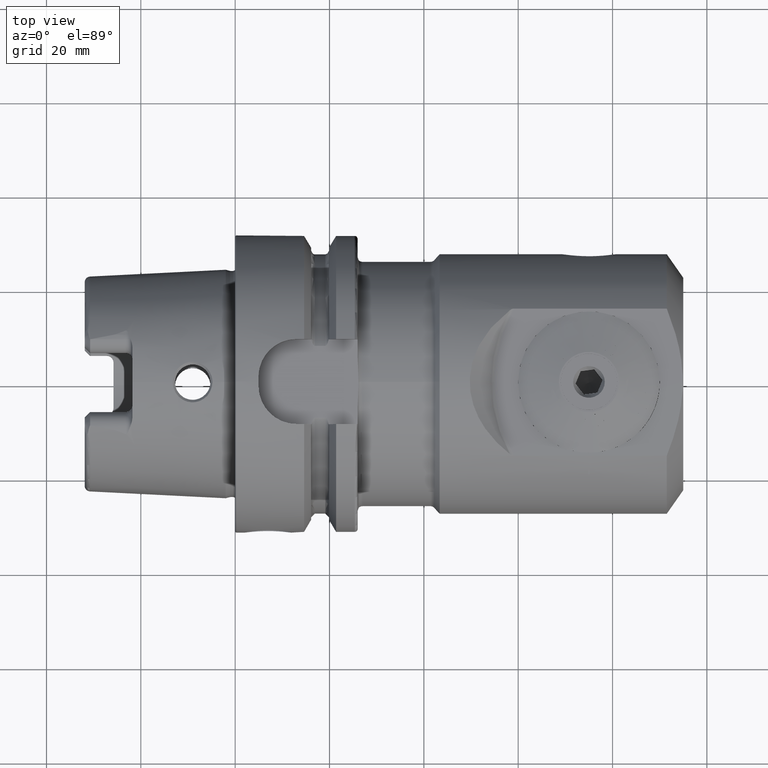
[diagram: clean part render]
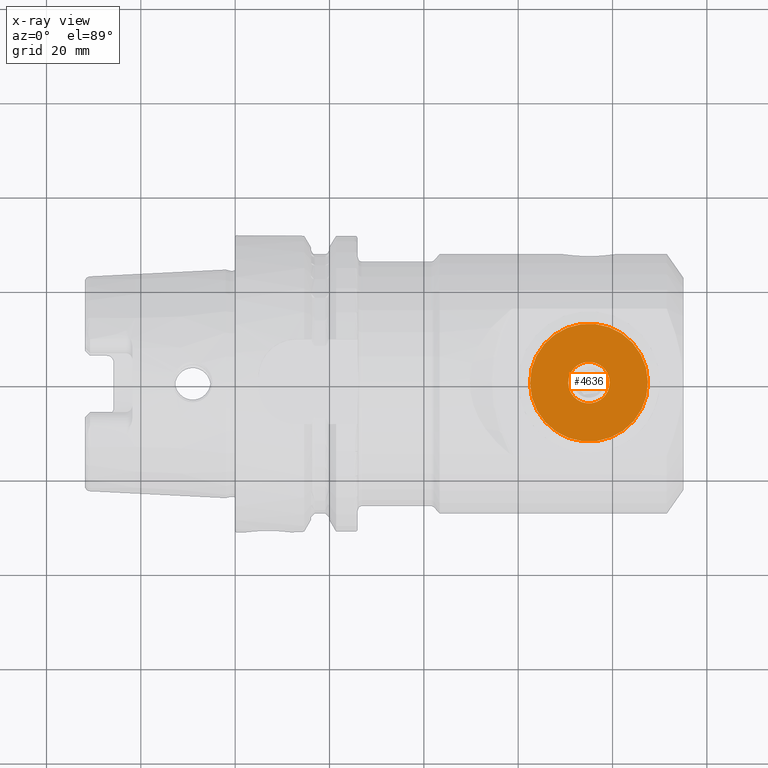
[diagram: x-ray — body ghosted, one internal face saturated and labeled with its STEP entity id]
A machine part, top view, then the same camera in x-ray: the body is ghosted and one INTERNAL B-rep face — a face not visible from any outside direction — is saturated and labeled: STEP entity #4636.
In plain terms, the highlighted planar face has unit normal (0, 0, 1).
Its self-contained STEP definition (entity closure, byte-faithful):
#266 = ORIENTED_EDGE ( 'NONE', *, *, #13907, .T. ) ;
#616 = EDGE_LOOP ( 'NONE', ( #3525, #266 ) ) ;
#657 = CARTESIAN_POINT ( 'NONE',  ( 9.099999999999994300, 12.50000000000001100, 0.0000000000000000000 ) ) ;
#801 = VERTEX_POINT ( 'NONE', #37157 ) ;
#1811 = VERTEX_POINT ( 'NONE', #27702 ) ;
#3525 = ORIENTED_EDGE ( 'NONE', *, *, #23292, .T. ) ;
#4475 = CARTESIAN_POINT ( 'NONE',  ( 9.099999999999997900, 0.0000000000000000000, 0.0000000000000000000 ) ) ;
#4524 = VERTEX_POINT ( 'NONE', #30473 ) ;
#4601 = CARTESIAN_POINT ( 'NONE',  ( 9.099999999999997900, 0.0000000000000000000, 0.0000000000000000000 ) ) ;
#4636 = ADVANCED_FACE ( 'NONE', ( #24056, #36022 ), #18486, .F. ) ;
#5225 = ORIENTED_EDGE ( 'NONE', *, *, #7733, .F. ) ;
#5388 = AXIS2_PLACEMENT_3D ( 'NONE', #5687, #11433, #32583 ) ;
#5687 = CARTESIAN_POINT ( 'NONE',  ( 9.099999999999997900, 0.0000000000000000000, 0.0000000000000000000 ) ) ;
#6100 = AXIS2_PLACEMENT_3D ( 'NONE', #37422, #19151, #22454 ) ;
#7733 = EDGE_CURVE ( 'NONE', #801, #23641, #20168, .T. ) ;
#8032 = AXIS2_PLACEMENT_3D ( 'NONE', #657, #9867, #24449 ) ;
#9867 = DIRECTION ( 'NONE',  ( -1.000000000000000000, -1.972152263052530000E-031, 4.483833959556379100E-063 ) ) ;
#10311 = CIRCLE ( 'NONE', #5388, 4.400000000000004800 ) ;
#10880 = DIRECTION ( 'NONE',  ( -1.000000000000000000, -1.972152263052530000E-031, 1.232595164407831200E-032 ) ) ;
#10901 = AXIS2_PLACEMENT_3D ( 'NONE', #4475, #10880, #13650 ) ;
#11433 = DIRECTION ( 'NONE',  ( -1.000000000000000000, -1.972152263052530000E-031, 1.232595164407831200E-032 ) ) ;
#13094 = AXIS2_PLACEMENT_3D ( 'NONE', #4601, #34823, #16833 ) ;
#13650 = DIRECTION ( 'NONE',  ( 0.0000000000000000000, 2.273573924062145000E-032, 1.000000000000000000 ) ) ;
#13907 = EDGE_CURVE ( 'NONE', #1811, #4524, #10311, .T. ) ;
#16833 = DIRECTION ( 'NONE',  ( 0.0000000000000000000, 2.273573924062145000E-032, 1.000000000000000000 ) ) ;
#16928 = EDGE_CURVE ( 'NONE', #23641, #801, #22992, .T. ) ;
#17281 = EDGE_LOOP ( 'NONE', ( #5225, #37943 ) ) ;
#17638 = CIRCLE ( 'NONE', #6100, 4.400000000000004800 ) ;
#18486 = PLANE ( 'NONE',  #8032 ) ;
#19151 = DIRECTION ( 'NONE',  ( -1.000000000000000000, -1.972152263052530000E-031, 1.232595164407831200E-032 ) ) ;
#20168 = CIRCLE ( 'NONE', #10901, 12.50000000000001100 ) ;
#22454 = DIRECTION ( 'NONE',  ( 0.0000000000000000000, 2.273573924062144400E-032, 1.000000000000000000 ) ) ;
#22992 = CIRCLE ( 'NONE', #13094, 12.50000000000001100 ) ;
#23292 = EDGE_CURVE ( 'NONE', #4524, #1811, #17638, .T. ) ;
#23641 = VERTEX_POINT ( 'NONE', #26907 ) ;
#24056 = FACE_OUTER_BOUND ( 'NONE', #17281, .T. ) ;
#24449 = DIRECTION ( 'NONE',  ( 0.0000000000000000000, 2.273573924062144400E-032, 1.000000000000000000 ) ) ;
#26907 = CARTESIAN_POINT ( 'NONE',  ( 9.099999999999997900, 1.530808498934194100E-015, -12.50000000000000000 ) ) ;
#27702 = CARTESIAN_POINT ( 'NONE',  ( 9.100000000000003200, 5.388445916248357000E-016, -4.400000000000004800 ) ) ;
#30473 = CARTESIAN_POINT ( 'NONE',  ( 9.100000000000003200, 2.115116213663201700E-032, 4.400000000000004800 ) ) ;
#32583 = DIRECTION ( 'NONE',  ( 0.0000000000000000000, 2.273573924062144400E-032, 1.000000000000000000 ) ) ;
#34823 = DIRECTION ( 'NONE',  ( -1.000000000000000000, -1.972152263052530000E-031, 1.232595164407831200E-032 ) ) ;
#36022 = FACE_BOUND ( 'NONE', #616, .T. ) ;
#37157 = CARTESIAN_POINT ( 'NONE',  ( 9.099999999999997900, 2.841967405077683700E-031, 12.50000000000001100 ) ) ;
#37422 = CARTESIAN_POINT ( 'NONE',  ( 9.099999999999997900, 0.0000000000000000000, 0.0000000000000000000 ) ) ;
#37943 = ORIENTED_EDGE ( 'NONE', *, *, #16928, .F. ) ;